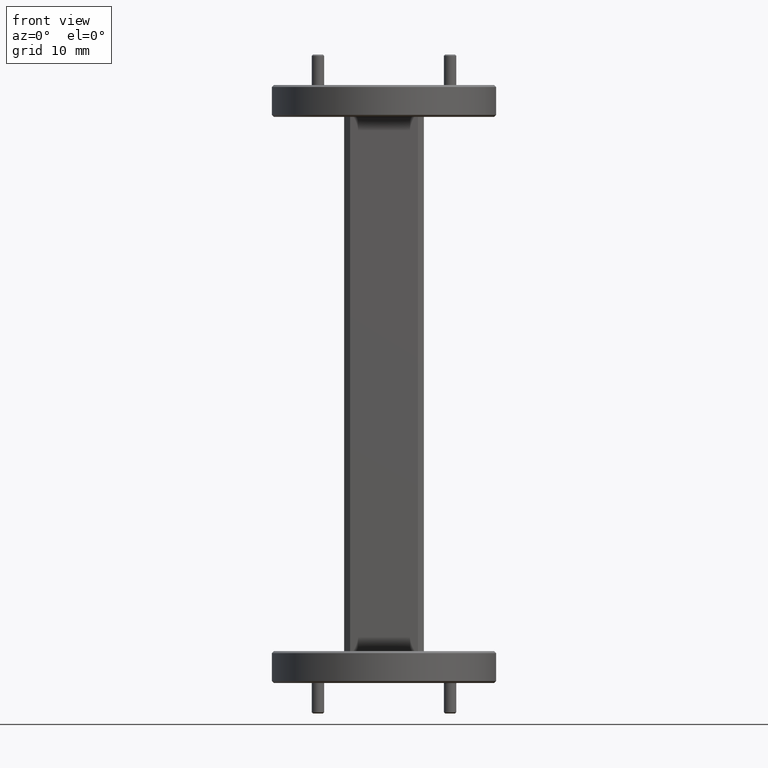
[diagram: clean part render]
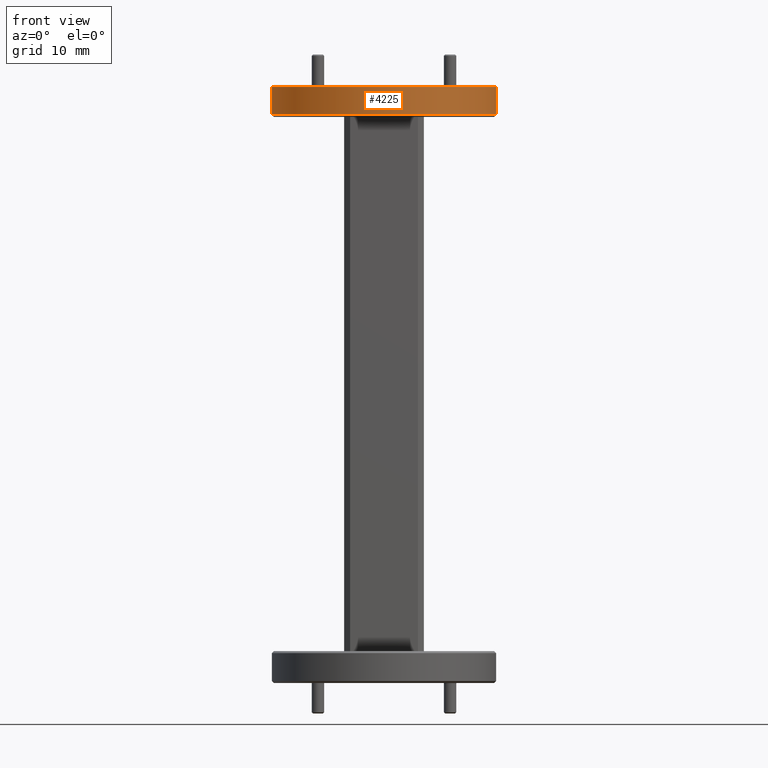
[diagram: same view with one face highlighted and labeled with its STEP entity id]
A machine part, front view. The second image highlights one B-rep face of the part: STEP entity #4225.
In plain terms, the highlighted cylindrical surface (partial cylindrical patch) has radius 14.2875 mm, axis along (0, 0, 1).
Its self-contained STEP definition (entity closure, byte-faithful):
#200 = DIRECTION ( 'NONE',  ( 1.000000000000000000, 0.000000000000000000, 0.000000000000000000 ) ) ;
#351 = DIRECTION ( 'NONE',  ( 0.000000000000000000, 0.000000000000000000, 1.000000000000000000 ) ) ;
#391 = CARTESIAN_POINT ( 'NONE',  ( 0.000000000000000000, 0.000000000000000000, 1.489999999999999769 ) ) ;
#512 = DIRECTION ( 'NONE',  ( 1.000000000000000000, 0.000000000000000000, 0.000000000000000000 ) ) ;
#566 = CARTESIAN_POINT ( 'NONE',  ( 0.5625000000000001110, 0.000000000000000000, 1.489999999999999769 ) ) ;
#620 = EDGE_CURVE ( 'NONE', #7966, #636, #5666, .T. ) ;
#636 = VERTEX_POINT ( 'NONE', #8751 ) ;
#702 = DIRECTION ( 'NONE',  ( 0.000000000000000000, 0.000000000000000000, 1.000000000000000000 ) ) ;
#989 = AXIS2_PLACEMENT_3D ( 'NONE', #9400, #9493, #200 ) ;
#1166 = VECTOR ( 'NONE', #702, 39.37007874015748143 ) ;
#1440 = CARTESIAN_POINT ( 'NONE',  ( 0.5625000000000001110, 0.000000000000000000, 1.350000000000000089 ) ) ;
#1549 = CARTESIAN_POINT ( 'NONE',  ( 0.5625000000000001110, 0.000000000000000000, 1.340000000000000080 ) ) ;
#1768 = VECTOR ( 'NONE', #351, 39.37007874015748143 ) ;
#1795 = FACE_OUTER_BOUND ( 'NONE', #2777, .T. ) ;
#1833 = AXIS2_PLACEMENT_3D ( 'NONE', #391, #7907, #9447 ) ;
#2021 = ORIENTED_EDGE ( 'NONE', *, *, #9142, .T. ) ;
#2545 = CARTESIAN_POINT ( 'NONE',  ( -0.5625000000000001110, 6.888638245203861944E-17, 1.340000000000000080 ) ) ;
#2777 = EDGE_LOOP ( 'NONE', ( #5923, #2021, #6291, #4071 ) ) ;
#2797 = CARTESIAN_POINT ( 'NONE',  ( -0.5625000000000001110, 6.888638245203861944E-17, 1.350000000000000089 ) ) ;
#3315 = EDGE_CURVE ( 'NONE', #5076, #636, #7120, .T. ) ;
#3645 = EDGE_CURVE ( 'NONE', #7138, #7966, #6821, .T. ) ;
#3753 = DIRECTION ( 'NONE',  ( -0.000000000000000000, -0.000000000000000000, 1.000000000000000000 ) ) ;
#4071 = ORIENTED_EDGE ( 'NONE', *, *, #620, .T. ) ;
#4225 = ADVANCED_FACE ( 'NONE', ( #1795 ), #7908, .T. ) ;
#4696 = CIRCLE ( 'NONE', #5337, 0.5625000000000001110 ) ;
#5076 = VERTEX_POINT ( 'NONE', #2797 ) ;
#5337 = AXIS2_PLACEMENT_3D ( 'NONE', #8863, #3753, #512 ) ;
#5666 = CIRCLE ( 'NONE', #1833, 0.5625000000000001110 ) ;
#5923 = ORIENTED_EDGE ( 'NONE', *, *, #3315, .F. ) ;
#6291 = ORIENTED_EDGE ( 'NONE', *, *, #3645, .T. ) ;
#6821 = LINE ( 'NONE', #1549, #1166 ) ;
#7120 = LINE ( 'NONE', #2545, #1768 ) ;
#7138 = VERTEX_POINT ( 'NONE', #1440 ) ;
#7907 = DIRECTION ( 'NONE',  ( 0.000000000000000000, 0.000000000000000000, -1.000000000000000000 ) ) ;
#7908 = CYLINDRICAL_SURFACE ( 'NONE', #989, 0.5625000000000001110 ) ;
#7966 = VERTEX_POINT ( 'NONE', #566 ) ;
#8751 = CARTESIAN_POINT ( 'NONE',  ( -0.5625000000000001110, 6.888638245203861944E-17, 1.489999999999999769 ) ) ;
#8863 = CARTESIAN_POINT ( 'NONE',  ( 0.000000000000000000, 0.000000000000000000, 1.350000000000000089 ) ) ;
#9142 = EDGE_CURVE ( 'NONE', #5076, #7138, #4696, .T. ) ;
#9400 = CARTESIAN_POINT ( 'NONE',  ( 0.000000000000000000, 0.000000000000000000, 1.340000000000000080 ) ) ;
#9447 = DIRECTION ( 'NONE',  ( 1.000000000000000000, 0.000000000000000000, 0.000000000000000000 ) ) ;
#9493 = DIRECTION ( 'NONE',  ( 0.000000000000000000, 0.000000000000000000, 1.000000000000000000 ) ) ;